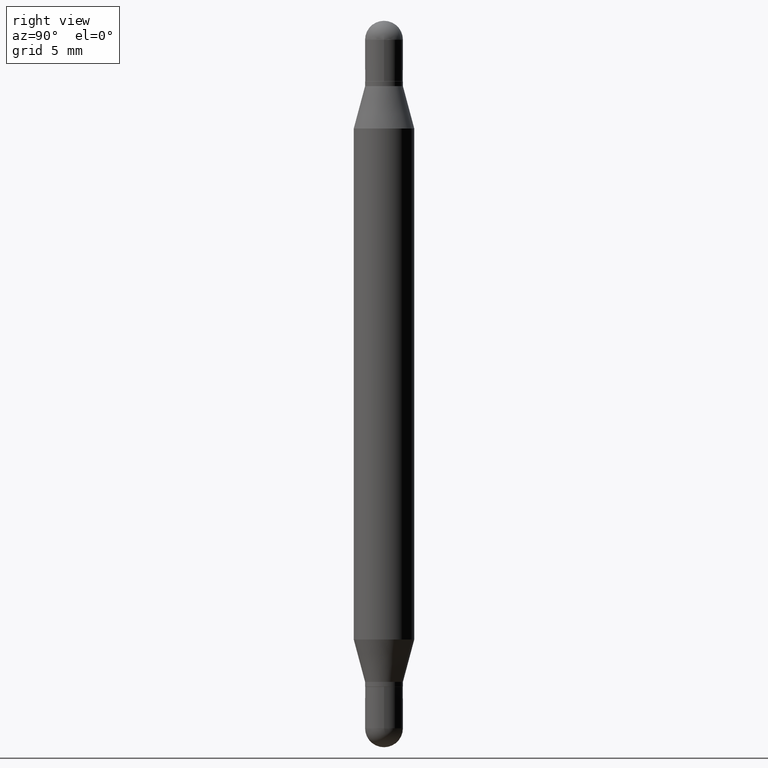
[diagram: clean part render]
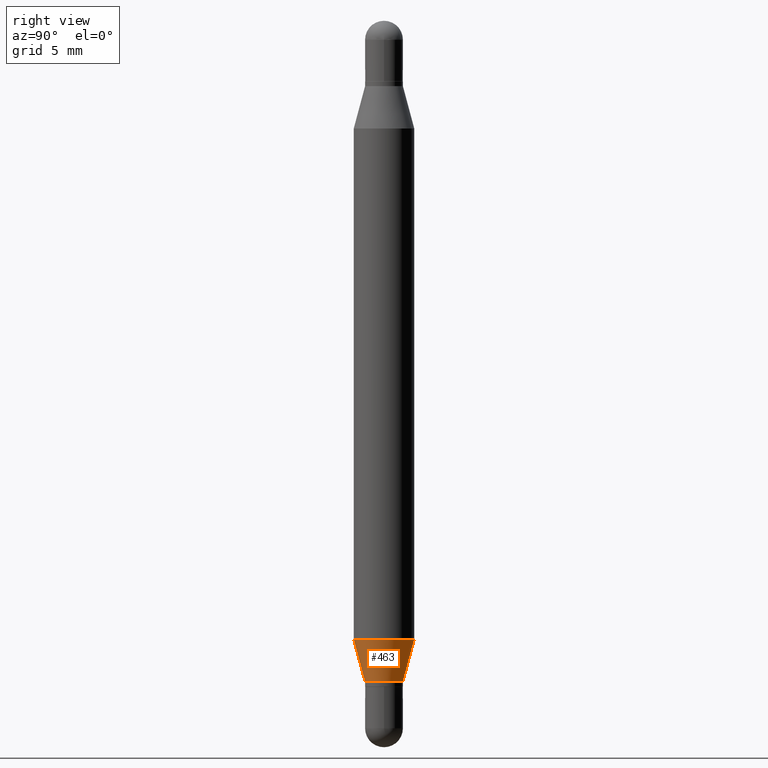
[diagram: same view with one face highlighted and labeled with its STEP entity id]
A machine part, right view. The second image highlights one B-rep face of the part: STEP entity #463.
In plain terms, the highlighted conical surface has half-angle 15 deg.
Its self-contained STEP definition (entity closure, byte-faithful):
#9 = VERTEX_POINT ( 'NONE', #1115 ) ;
#27 = DIRECTION ( 'NONE',  ( -2.445629184337248949E-29, 3.491251668201163019E-15, 1.000000000000000000 ) ) ;
#31 = CARTESIAN_POINT ( 'NONE',  ( -2.726846925636128250E-16, -0.03905000000000441451, -1.365000000000000435 ) ) ;
#32 = DIRECTION ( 'NONE',  ( 1.839019923739598738E-15, 0.2588190451025247363, 0.9659258262890673130 ) ) ;
#130 = CARTESIAN_POINT ( 'NONE',  ( 3.338283836620345741E-29, -4.765558527094588548E-15, -1.365000000000000435 ) ) ;
#154 = CARTESIAN_POINT ( 'NONE',  ( 3.124250706487097646E-29, -4.460016081243167636E-15, -1.277483408562509082 ) ) ;
#185 = VECTOR ( 'NONE', #32, 39.37007874015748854 ) ;
#222 = CARTESIAN_POINT ( 'NONE',  ( 3.338283836620345741E-29, -4.765558527094588548E-15, -1.365000000000000435 ) ) ;
#235 = ORIENTED_EDGE ( 'NONE', *, *, #1074, .F. ) ;
#324 = EDGE_CURVE ( 'NONE', #9, #574, #704, .T. ) ;
#336 = ORIENTED_EDGE ( 'NONE', *, *, #396, .T. ) ;
#367 = VERTEX_POINT ( 'NONE', #1077 ) ;
#372 = CIRCLE ( 'NONE', #391, 0.06250000000000000000 ) ;
#391 = AXIS2_PLACEMENT_3D ( 'NONE', #154, #1078, #400 ) ;
#396 = EDGE_CURVE ( 'NONE', #574, #1049, #1073, .T. ) ;
#400 = DIRECTION ( 'NONE',  ( -6.982962677686265922E-15, -1.000000000000000000, 4.370956789862821150E-15 ) ) ;
#463 = ADVANCED_FACE ( 'NONE', ( #716 ), #911, .T. ) ;
#503 = EDGE_LOOP ( 'NONE', ( #1058, #336, #235, #523 ) ) ;
#523 = ORIENTED_EDGE ( 'NONE', *, *, #958, .F. ) ;
#533 = DIRECTION ( 'NONE',  ( -1.807323732225328562E-15, -0.2588190451025179639, 0.9659258262890690894 ) ) ;
#574 = VERTEX_POINT ( 'NONE', #1016 ) ;
#642 = LINE ( 'NONE', #31, #1091 ) ;
#643 = CARTESIAN_POINT ( 'NONE',  ( 2.774669383143499472E-16, 0.03904999999999488741, -1.365000000000000435 ) ) ;
#704 = CIRCLE ( 'NONE', #909, 0.03904999999999964749 ) ;
#716 = FACE_OUTER_BOUND ( 'NONE', #503, .T. ) ;
#722 = DIRECTION ( 'NONE',  ( -6.982962677686266711E-15, -1.000000000000000000, 0.000000000000000000 ) ) ;
#832 = DIRECTION ( 'NONE',  ( -2.445629184337248949E-29, 3.491251668201163019E-15, 1.000000000000000000 ) ) ;
#909 = AXIS2_PLACEMENT_3D ( 'NONE', #222, #832, #1005 ) ;
#911 = CONICAL_SURFACE ( 'NONE', #962, 0.03904999999999964749, 0.2617993877991500740 ) ;
#958 = EDGE_CURVE ( 'NONE', #9, #367, #642, .T. ) ;
#962 = AXIS2_PLACEMENT_3D ( 'NONE', #130, #27, #722 ) ;
#997 = CARTESIAN_POINT ( 'NONE',  ( 4.287811248607390637E-16, 0.06249999999999554523, -1.277483408562509304 ) ) ;
#1005 = DIRECTION ( 'NONE',  ( -6.982962677686266711E-15, -1.000000000000000000, 0.000000000000000000 ) ) ;
#1016 = CARTESIAN_POINT ( 'NONE',  ( 2.774669383143501938E-16, 0.03904999999999488741, -1.365000000000000435 ) ) ;
#1049 = VERTEX_POINT ( 'NONE', #997 ) ;
#1058 = ORIENTED_EDGE ( 'NONE', *, *, #324, .T. ) ;
#1073 = LINE ( 'NONE', #643, #185 ) ;
#1074 = EDGE_CURVE ( 'NONE', #367, #1049, #372, .T. ) ;
#1077 = CARTESIAN_POINT ( 'NONE',  ( -4.364351673553603615E-16, -0.06250000000000445477, -1.277483408562508860 ) ) ;
#1078 = DIRECTION ( 'NONE',  ( -2.445629184337248949E-29, 3.491251668201163019E-15, 1.000000000000000000 ) ) ;
#1091 = VECTOR ( 'NONE', #533, 39.37007874015748854 ) ;
#1115 = CARTESIAN_POINT ( 'NONE',  ( -2.726846925636128250E-16, -0.03905000000000441451, -1.365000000000000435 ) ) ;